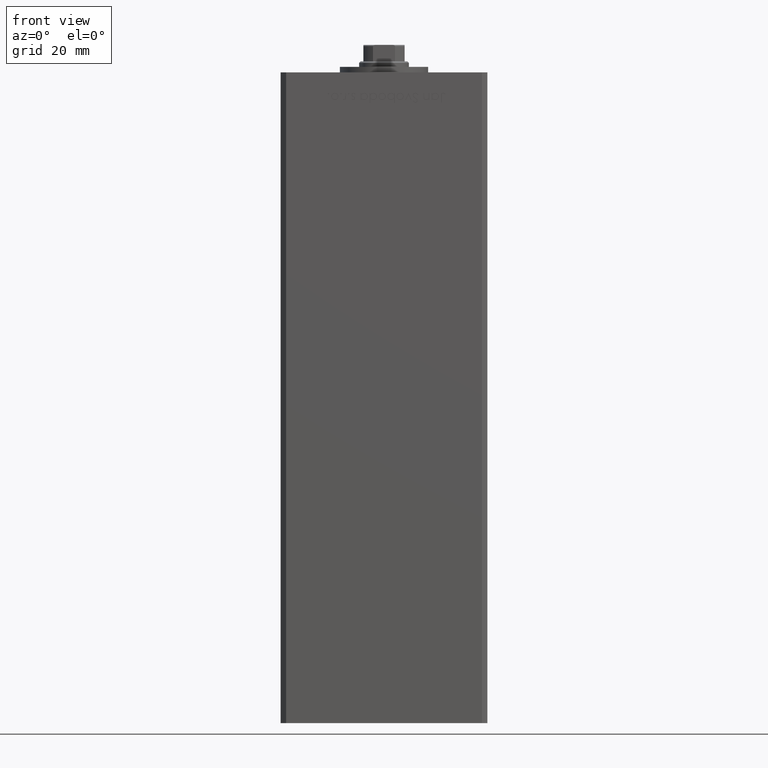
[diagram: clean part render]
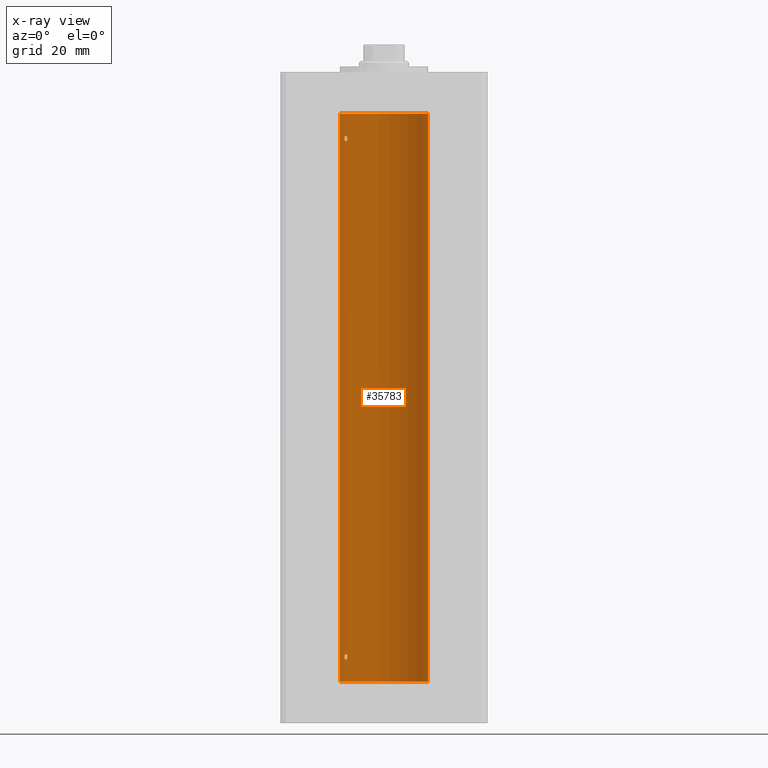
[diagram: x-ray — body ghosted, one internal face saturated and labeled with its STEP entity id]
A machine part, front view, then the same camera in x-ray: the body is ghosted and one INTERNAL B-rep face — a face not visible from any outside direction — is saturated and labeled: STEP entity #35783.
In plain terms, the highlighted cylindrical surface (partial cylindrical patch) has radius 16 mm, axis along (-0, -0, -1).
Its self-contained STEP definition (entity closure, byte-faithful):
#177 = EDGE_CURVE ( 'NONE', #9766, #19220, #21449, .T. ) ;
#308 = CARTESIAN_POINT ( 'NONE',  ( -13.70792461986390798, 8.256614593260307444, 197.9966215356423049 ) ) ;
#741 = ORIENTED_EDGE ( 'NONE', *, *, #8285, .F. ) ;
#1160 = CARTESIAN_POINT ( 'NONE',  ( -13.37741691572085934, 8.778212469423014142, 9.640882860227099727 ) ) ;
#1358 = CARTESIAN_POINT ( 'NONE',  ( -13.70481462797717676, 8.258098555717509726, 196.0259974772911562 ) ) ;
#1934 = CARTESIAN_POINT ( 'NONE',  ( -13.70792461986390620, 8.256614593260307444, 9.996621535642271184 ) ) ;
#2637 = CARTESIAN_POINT ( 'NONE',  ( 16.00000000000000000, 1.959434878635765131E-15, 206.0000000000000000 ) ) ;
#2683 = CARTESIAN_POINT ( 'NONE',  ( -13.49759407097374897, 8.592283911330223845, 8.184099152127670251 ) ) ;
#3207 = CARTESIAN_POINT ( 'NONE',  ( -14.11621438951177332, 7.533308783217010252, 8.106571071839512754 ) ) ;
#3460 = CARTESIAN_POINT ( 'NONE',  ( -13.22875655532295092, 8.999999999999994671, 8.929565622361636201 ) ) ;
#3743 = CARTESIAN_POINT ( 'NONE',  ( -13.22875655532296157, 8.999999999999994671, 197.1406447609176951 ) ) ;
#3889 = EDGE_CURVE ( 'NONE', #19220, #9766, #11745, .T. ) ;
#5578 = CARTESIAN_POINT ( 'NONE',  ( -14.38749456993816267, 6.999999999999999112, 196.8571474096354450 ) ) ;
#5790 = DIRECTION ( 'NONE',  ( -0.000000000000000000, -0.000000000000000000, -1.000000000000000000 ) ) ;
#6645 = CARTESIAN_POINT ( 'NONE',  ( -13.37674940693422521, 8.779234808442870630, 8.360244157126784259 ) ) ;
#6970 = CARTESIAN_POINT ( 'NONE',  ( -13.22875655532295447, 8.999999999999996447, 9.000000000000000000 ) ) ;
#7137 = CIRCLE ( 'NONE', #36592, 16.00000000000000000 ) ;
#7142 = ORIENTED_EDGE ( 'NONE', *, *, #34049, .F. ) ;
#7311 = DIRECTION ( 'NONE',  ( -0.000000000000000000, -0.000000000000000000, -1.000000000000000000 ) ) ;
#7446 = ORIENTED_EDGE ( 'NONE', *, *, #177, .F. ) ;
#8081 = CARTESIAN_POINT ( 'NONE',  ( 16.00000000000000000, 1.959434878635765131E-15, 206.0000000000000000 ) ) ;
#8285 = EDGE_CURVE ( 'NONE', #25188, #33599, #42947, .T. ) ;
#8429 = DIRECTION ( 'NONE',  ( 1.000000000000000000, 0.000000000000000000, 0.000000000000000000 ) ) ;
#8745 = CARTESIAN_POINT ( 'NONE',  ( -13.98878315975728803, 7.767347947480344850, 197.9805461432612788 ) ) ;
#9269 = CARTESIAN_POINT ( 'NONE',  ( -13.37674940693422876, 8.779234808442867077, 196.3602441571268002 ) ) ;
#9587 = CARTESIAN_POINT ( 'NONE',  ( -14.31650799088418324, 7.144337649771912879, 9.535522627373689275 ) ) ;
#9766 = VERTEX_POINT ( 'NONE', #39821 ) ;
#10095 = ORIENTED_EDGE ( 'NONE', *, *, #15271, .T. ) ;
#10113 = CARTESIAN_POINT ( 'NONE',  ( -14.38749456993816445, 6.999999999999997335, 9.142625441524202756 ) ) ;
#10852 = CARTESIAN_POINT ( 'NONE',  ( -13.26838749541400198, 8.941532915076040311, 8.656217793921369363 ) ) ;
#11631 = CARTESIAN_POINT ( 'NONE',  ( -13.91838063522420832, 7.892966471903941184, 7.998148313308679036 ) ) ;
#11644 = DIRECTION ( 'NONE',  ( -0.000000000000000000, -0.000000000000000000, -1.000000000000000000 ) ) ;
#11745 = B_SPLINE_CURVE_WITH_KNOTS ( 'NONE', 3,
 ( #14069, #42039, #38072, #45487, #1160, #45740, #1934, #18027, #41778, #21464, #46263, #41266, #9587, #17250, #10113, #25670 ),
 .UNSPECIFIED., .F., .F.,
 ( 4, 2, 2, 2, 2, 2, 2, 4 ),
 ( 0.003377672193071777282, 0.003799209865779874882, 0.004220747538487972482, 0.005063822883904168549, 0.005485360556612268318, 0.005906898229320367219, 0.006328435902028466120, 0.006749973574736565889 ),
 .UNSPECIFIED. ) ;
#12125 = AXIS2_PLACEMENT_3D ( 'NONE', #13191, #5790, #45379 ) ;
#12186 = CARTESIAN_POINT ( 'NONE',  ( -13.22875655532295802, 8.999999999999996447, 197.0000000000000000 ) ) ;
#12454 = CARTESIAN_POINT ( 'NONE',  ( -13.55800260393081835, 8.498809056167509368, 197.9036434462101681 ) ) ;
#12459 = CARTESIAN_POINT ( 'NONE',  ( -13.49759407097375075, 8.592283911330223845, 196.1840991521276862 ) ) ;
#12715 = CARTESIAN_POINT ( 'NONE',  ( -13.56386909142669772, 8.487613976483636691, 196.1182242979961075 ) ) ;
#13191 = CARTESIAN_POINT ( 'NONE',  ( 0.000000000000000000, 0.000000000000000000, 206.0000000000000000 ) ) ;
#14069 = CARTESIAN_POINT ( 'NONE',  ( -13.22875655532295447, 8.999999999999996447, 9.000000000000000000 ) ) ;
#14694 = CARTESIAN_POINT ( 'NONE',  ( -16.00000000000000000, 0.000000000000000000, 0.000000000000000000 ) ) ;
#14803 = CARTESIAN_POINT ( 'NONE',  ( -13.98699950016872151, 7.770591669637119558, 8.018476816648481886 ) ) ;
#15271 = EDGE_CURVE ( 'NONE', #27251, #38717, #47265, .T. ) ;
#16385 = VERTEX_POINT ( 'NONE', #2637 ) ;
#16477 = ORIENTED_EDGE ( 'NONE', *, *, #23230, .T. ) ;
#16659 = CARTESIAN_POINT ( 'NONE',  ( -14.27521483392928836, 7.227035590538638310, 197.6478598706881655 ) ) ;
#16922 = CARTESIAN_POINT ( 'NONE',  ( -14.17576283486774891, 7.420212263225987925, 197.8252530343044384 ) ) ;
#17250 = CARTESIAN_POINT ( 'NONE',  ( -14.37227256866306213, 7.031482256185707769, 9.284457240976479397 ) ) ;
#17434 = EDGE_LOOP ( 'NONE', ( #741, #45040 ) ) ;
#17447 = CARTESIAN_POINT ( 'NONE',  ( -13.98699950016872151, 7.770591669637114229, 196.0184768166485014 ) ) ;
#17699 = CARTESIAN_POINT ( 'NONE',  ( -14.11621438951177687, 7.533308783217008475, 196.1065710718394826 ) ) ;
#17912 = FACE_OUTER_BOUND ( 'NONE', #26684, .T. ) ;
#18027 = CARTESIAN_POINT ( 'NONE',  ( -13.91892506969882959, 7.891973478508852224, 10.00155212263243953 ) ) ;
#19220 = VERTEX_POINT ( 'NONE', #6970 ) ;
#19290 = CARTESIAN_POINT ( 'NONE',  ( -13.25390108270225298, 8.962947079338388079, 8.721435762358455079 ) ) ;
#19545 = CARTESIAN_POINT ( 'NONE',  ( -14.37250282441143767, 7.031013007322936659, 8.716856996037261496 ) ) ;
#19834 = CARTESIAN_POINT ( 'NONE',  ( -13.32457971225032622, 8.857769707964648020, 197.5319996627465571 ) ) ;
#20353 = CARTESIAN_POINT ( 'NONE',  ( -13.24976519864029179, 8.969293778684573226, 197.2815352263351940 ) ) ;
#20615 = CARTESIAN_POINT ( 'NONE',  ( -14.17528142432533755, 7.421143801852455368, 196.1739430735386520 ) ) ;
#20688 = CARTESIAN_POINT ( 'NONE',  ( 0.000000000000000000, 0.000000000000000000, 0.000000000000000000 ) ) ;
#20882 = CARTESIAN_POINT ( 'NONE',  ( -13.32426099938365383, 8.858246960865844954, 196.4688748775329543 ) ) ;
#21449 = B_SPLINE_CURVE_WITH_KNOTS ( 'NONE', 3,
 ( #50938, #23249, #19545, #47510, #47000, #50682, #3207, #14803, #11631, #27714, #39337, #35368, #2683, #6645, #42776, #10852, #19290, #31671, #3460, #51458 ),
 .UNSPECIFIED., .F., .F.,
 ( 4, 2, 2, 2, 2, 2, 2, 2, 2, 4 ),
 ( 0.000000000000000000, 0.0004222090241339719976, 0.0008444180482679439952, 0.001266627072401915830, 0.001688836096535887990, 0.002111045120669860151, 0.002533254144803831660, 0.002955463168937803604, 0.003166567681004790660, 0.003377672193071777282 ),
 .UNSPECIFIED. ) ;
#21464 = CARTESIAN_POINT ( 'NONE',  ( -14.11618354197461400, 7.533333301880478672, 9.893207651933416003 ) ) ;
#21870 = FACE_BOUND ( 'NONE', #17434, .T. ) ;
#22158 = EDGE_LOOP ( 'NONE', ( #7446, #45825 ) ) ;
#23230 = EDGE_CURVE ( 'NONE', #16385, #27251, #7137, .T. ) ;
#23249 = CARTESIAN_POINT ( 'NONE',  ( -14.38749456993815556, 6.999999999999997335, 8.857147409635411250 ) ) ;
#24573 = CARTESIAN_POINT ( 'NONE',  ( -13.91838063522421010, 7.892966471903945624, 195.9981483133087181 ) ) ;
#24823 = CARTESIAN_POINT ( 'NONE',  ( -14.31650799088418147, 7.144337649771908438, 197.5355226273736946 ) ) ;
#24826 = CARTESIAN_POINT ( 'NONE',  ( -13.25390108270225120, 8.962947079338391632, 196.7214357623584817 ) ) ;
#25188 = VERTEX_POINT ( 'NONE', #44532 ) ;
#25559 = CYLINDRICAL_SURFACE ( 'NONE', #12125, 16.00000000000000000 ) ;
#25604 = CARTESIAN_POINT ( 'NONE',  ( -13.23400746336172240, 8.992294519018086518, 196.8578145590230122 ) ) ;
#25670 = CARTESIAN_POINT ( 'NONE',  ( -14.38749456993815912, 6.999999999999997335, 9.000000000000000000 ) ) ;
#26684 = EDGE_LOOP ( 'NONE', ( #27522, #16477, #10095, #7142 ) ) ;
#27157 = CARTESIAN_POINT ( 'NONE',  ( -16.00000000000000000, 0.000000000000000000, 206.0000000000000000 ) ) ;
#27251 = VERTEX_POINT ( 'NONE', #27157 ) ;
#27437 = VECTOR ( 'NONE', #7311, 1000.000000000000000 ) ;
#27522 = ORIENTED_EDGE ( 'NONE', *, *, #40397, .F. ) ;
#27714 = CARTESIAN_POINT ( 'NONE',  ( -13.77582987033441064, 8.139210687602712824, 8.002110545841816247 ) ) ;
#28354 = CIRCLE ( 'NONE', #35218, 16.00000000000000000 ) ;
#28477 = CARTESIAN_POINT ( 'NONE',  ( 0.000000000000000000, 0.000000000000000000, 206.0000000000000000 ) ) ;
#29655 = CARTESIAN_POINT ( 'NONE',  ( 16.00000000000000000, 1.959434878635765131E-15, 0.000000000000000000 ) ) ;
#31671 = CARTESIAN_POINT ( 'NONE',  ( -13.23400746336172951, 8.992294519018086518, 8.857814559023015732 ) ) ;
#32547 = DIRECTION ( 'NONE',  ( -0.000000000000000000, 0.000000000000000000, 1.000000000000000000 ) ) ;
#33203 = DIRECTION ( 'NONE',  ( -0.000000000000000000, 0.000000000000000000, 1.000000000000000000 ) ) ;
#33262 = CARTESIAN_POINT ( 'NONE',  ( -14.38749456993815912, 6.999999999999998224, 197.0000000000000000 ) ) ;
#33599 = VERTEX_POINT ( 'NONE', #35997 ) ;
#33779 = CARTESIAN_POINT ( 'NONE',  ( -14.27547848986622370, 7.226527013162184154, 196.3525557301815070 ) ) ;
#34049 = EDGE_CURVE ( 'NONE', #34982, #38717, #28354, .T. ) ;
#34982 = VERTEX_POINT ( 'NONE', #29655 ) ;
#35218 = AXIS2_PLACEMENT_3D ( 'NONE', #20688, #32547, #36778 ) ;
#35257 = LINE ( 'NONE', #8081, #27437 ) ;
#35368 = CARTESIAN_POINT ( 'NONE',  ( -13.56386909142669950, 8.487613976483636691, 8.118224297996075478 ) ) ;
#35783 = ADVANCED_FACE ( 'NONE', ( #17912, #50089, #21870 ), #25559, .F. ) ;
#35919 = CARTESIAN_POINT ( 'NONE',  ( -13.91892506969882071, 7.891973478508848672, 198.0015521226323472 ) ) ;
#35997 = CARTESIAN_POINT ( 'NONE',  ( -13.22875655532295802, 8.999999999999996447, 197.0000000000000000 ) ) ;
#36431 = CARTESIAN_POINT ( 'NONE',  ( -13.37741691572086111, 8.778212469423007036, 197.6408828602271512 ) ) ;
#36592 = AXIS2_PLACEMENT_3D ( 'NONE', #28477, #33203, #8429 ) ;
#36778 = DIRECTION ( 'NONE',  ( 1.000000000000000000, 0.000000000000000000, 0.000000000000000000 ) ) ;
#36962 = CARTESIAN_POINT ( 'NONE',  ( -14.37227256866306213, 7.031482256185711321, 197.2844572409765078 ) ) ;
#36965 = CARTESIAN_POINT ( 'NONE',  ( -13.26838749541400908, 8.941532915076043864, 196.6562177939213711 ) ) ;
#37750 = CARTESIAN_POINT ( 'NONE',  ( -13.22875655532295802, 8.999999999999996447, 197.0000000000000000 ) ) ;
#38072 = CARTESIAN_POINT ( 'NONE',  ( -13.24976519864029179, 8.969293778684576779, 9.281535226335156707 ) ) ;
#38717 = VERTEX_POINT ( 'NONE', #14694 ) ;
#39337 = CARTESIAN_POINT ( 'NONE',  ( -13.70481462797718031, 8.258098555717506173, 8.025997477291133109 ) ) ;
#39351 = CARTESIAN_POINT ( 'NONE',  ( -16.00000000000000000, 0.000000000000000000, 206.0000000000000000 ) ) ;
#39411 = EDGE_CURVE ( 'NONE', #33599, #25188, #45698, .T. ) ;
#39821 = CARTESIAN_POINT ( 'NONE',  ( -14.38749456993815912, 6.999999999999997335, 9.000000000000000000 ) ) ;
#40397 = EDGE_CURVE ( 'NONE', #16385, #34982, #35257, .T. ) ;
#40606 = VECTOR ( 'NONE', #11644, 1000.000000000000000 ) ;
#40671 = CARTESIAN_POINT ( 'NONE',  ( -14.38749456993815734, 6.999999999999997335, 197.1426254415242170 ) ) ;
#41266 = CARTESIAN_POINT ( 'NONE',  ( -14.27521483392929014, 7.227035590538633869, 9.647859870688195727 ) ) ;
#41778 = CARTESIAN_POINT ( 'NONE',  ( -13.98878315975729159, 7.767347947480346626, 9.980546143261280534 ) ) ;
#42039 = CARTESIAN_POINT ( 'NONE',  ( -13.22875655532295447, 8.999999999999996447, 9.140644760917734146 ) ) ;
#42776 = CARTESIAN_POINT ( 'NONE',  ( -13.32426099938365027, 8.858246960865852060, 8.468874877532968526 ) ) ;
#42947 = B_SPLINE_CURVE_WITH_KNOTS ( 'NONE', 3,
 ( #49380, #5578, #48851, #45422, #33779, #20615, #17699, #17447, #24573, #45163, #1358, #12715, #12459, #9269, #20882, #36965, #24826, #25604, #45675, #37750 ),
 .UNSPECIFIED., .F., .F.,
 ( 4, 2, 2, 2, 2, 2, 2, 2, 2, 4 ),
 ( 0.000000000000000000, 0.0004222090241339633240, 0.0008444180482679266480, 0.001266627072401889809, 0.001688836096535853296, 0.002111045120669816783, 0.002533254144803779619, 0.002955463168937742888, 0.003166567681004761603, 0.003377672193071779884 ),
 .UNSPECIFIED. ) ;
#44532 = CARTESIAN_POINT ( 'NONE',  ( -14.38749456993815912, 6.999999999999998224, 197.0000000000000000 ) ) ;
#45040 = ORIENTED_EDGE ( 'NONE', *, *, #39411, .F. ) ;
#45163 = CARTESIAN_POINT ( 'NONE',  ( -13.77582987033440709, 8.139210687602719929, 196.0021105458419015 ) ) ;
#45379 = DIRECTION ( 'NONE',  ( -1.000000000000000000, 0.000000000000000000, 0.000000000000000000 ) ) ;
#45422 = CARTESIAN_POINT ( 'NONE',  ( -14.31660136508398828, 7.144151923086063505, 196.4646217954444296 ) ) ;
#45487 = CARTESIAN_POINT ( 'NONE',  ( -13.32457971225032445, 8.857769707964649797, 9.531999662746555302 ) ) ;
#45675 = CARTESIAN_POINT ( 'NONE',  ( -13.22875655532295625, 8.999999999999994671, 196.9295656223615936 ) ) ;
#45698 = B_SPLINE_CURVE_WITH_KNOTS ( 'NONE', 3,
 ( #12186, #3743, #20353, #19834, #36431, #12454, #308, #35919, #8745, #48847, #16922, #16659, #24823, #36962, #40671, #33262 ),
 .UNSPECIFIED., .F., .F.,
 ( 4, 2, 2, 2, 2, 2, 2, 4 ),
 ( 0.003377672193071779884, 0.003799209865779855366, 0.004220747538487930849, 0.005063822883904134722, 0.005485360556612237093, 0.005906898229320339463, 0.006328435902028442701, 0.006749973574736545072 ),
 .UNSPECIFIED. ) ;
#45740 = CARTESIAN_POINT ( 'NONE',  ( -13.55800260393082546, 8.498809056167521803, 9.903643446210175227 ) ) ;
#45825 = ORIENTED_EDGE ( 'NONE', *, *, #3889, .F. ) ;
#46263 = CARTESIAN_POINT ( 'NONE',  ( -14.17576283486774535, 7.420212263225985261, 9.825253034304354927 ) ) ;
#47000 = CARTESIAN_POINT ( 'NONE',  ( -14.27547848986622014, 7.226527013162185931, 8.352555730181528304 ) ) ;
#47265 = LINE ( 'NONE', #39351, #40606 ) ;
#47510 = CARTESIAN_POINT ( 'NONE',  ( -14.31660136508399184, 7.144151923086058176, 8.464621795444474017 ) ) ;
#48847 = CARTESIAN_POINT ( 'NONE',  ( -14.11618354197461400, 7.533333301880474231, 197.8932076519334089 ) ) ;
#48851 = CARTESIAN_POINT ( 'NONE',  ( -14.37250282441143945, 7.031013007322939323, 196.7168569960373077 ) ) ;
#49380 = CARTESIAN_POINT ( 'NONE',  ( -14.38749456993815912, 6.999999999999998224, 197.0000000000000000 ) ) ;
#50089 = FACE_BOUND ( 'NONE', #22158, .T. ) ;
#50682 = CARTESIAN_POINT ( 'NONE',  ( -14.17528142432533755, 7.421143801852455368, 8.173943073538659121 ) ) ;
#50938 = CARTESIAN_POINT ( 'NONE',  ( -14.38749456993815912, 6.999999999999997335, 9.000000000000000000 ) ) ;
#51458 = CARTESIAN_POINT ( 'NONE',  ( -13.22875655532295447, 8.999999999999996447, 9.000000000000000000 ) ) ;